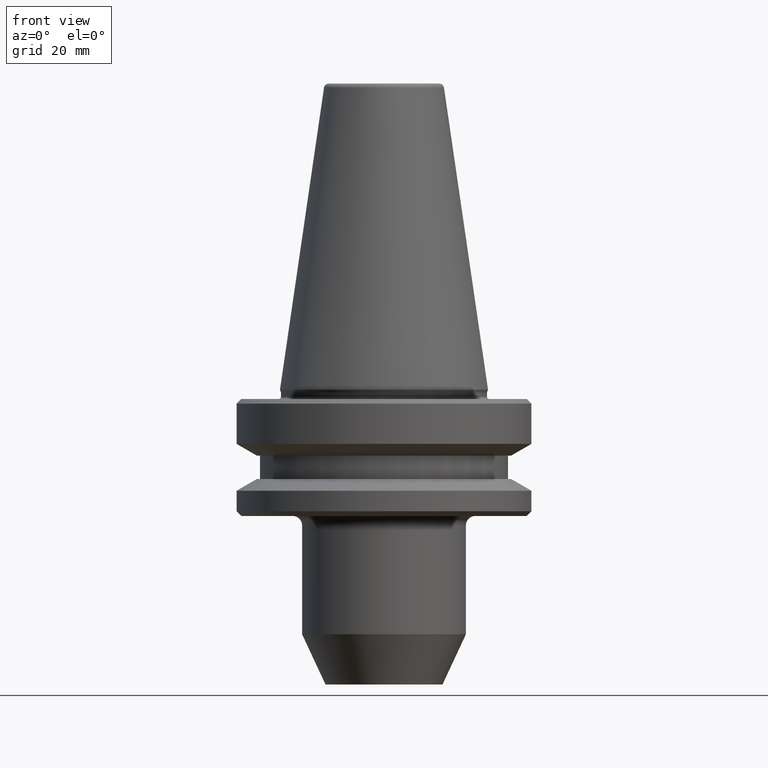
[diagram: clean part render]
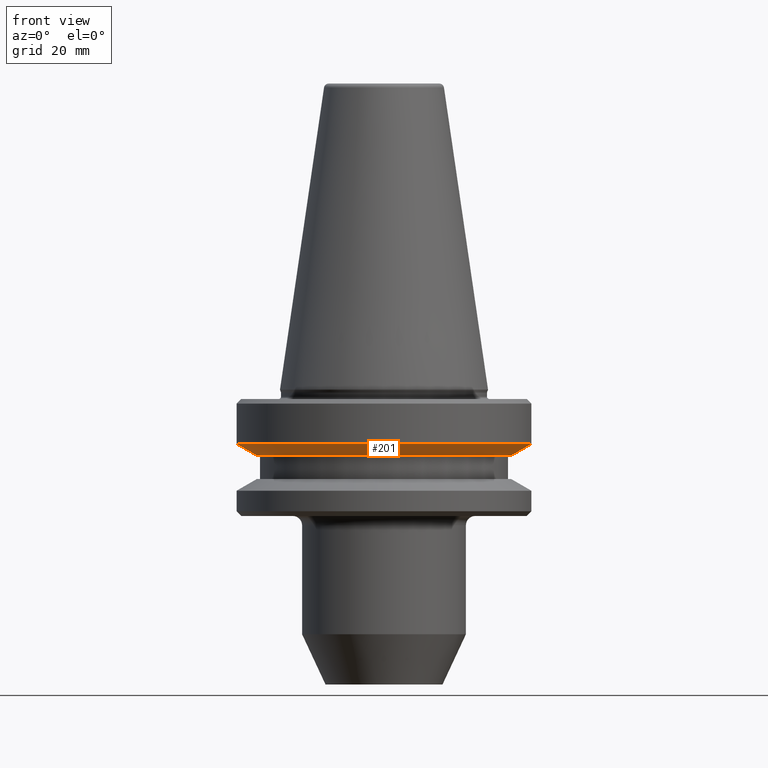
[diagram: same view with one face highlighted and labeled with its STEP entity id]
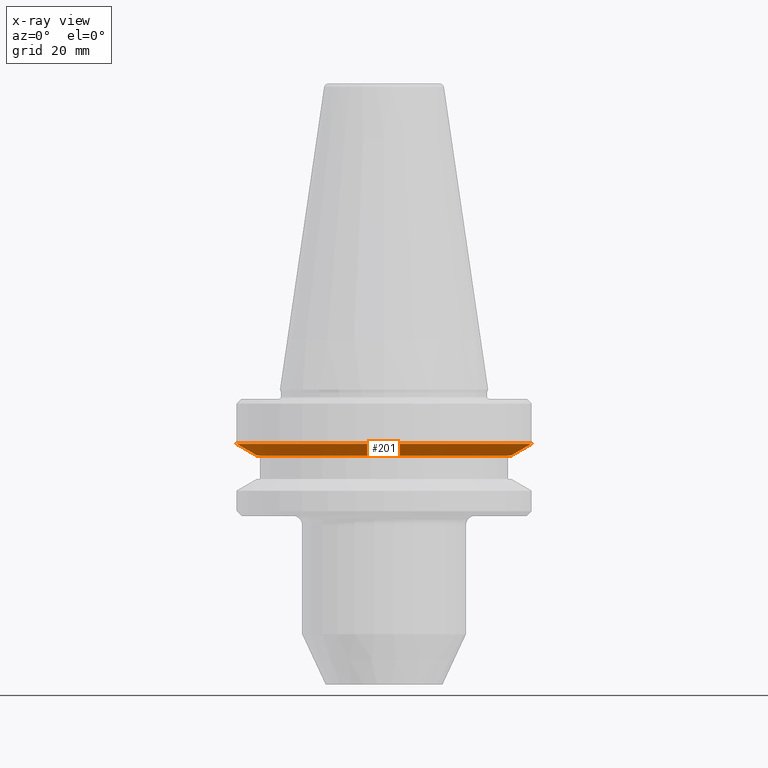
[diagram: x-ray of the same camera — body ghosted, the highlighted face saturated]
A machine part, front view. The second image highlights one B-rep face of the part: STEP entity #201.
The next image is the same camera in x-ray: the body ghosted, the highlighted face saturated — about 0% of this face is hidden behind the body in this view.
In plain terms, the highlighted conical surface has half-angle 60 deg.
Its self-contained STEP definition (entity closure, byte-faithful):
#25 = LINE ( 'NONE', #699, #771 ) ;
#37 = CIRCLE ( 'NONE', #142, 31.49999999999997200 ) ;
#142 = AXIS2_PLACEMENT_3D ( 'NONE', #397, #964, #892 ) ;
#164 = ORIENTED_EDGE ( 'NONE', *, *, #246, .T. ) ;
#201 = ADVANCED_FACE ( 'NONE', ( #990 ), #217, .T. ) ;
#217 = CONICAL_SURFACE ( 'NONE', #538, 27.16962701892289200, 1.047197551196600300 ) ;
#246 = EDGE_CURVE ( 'NONE', #623, #645, #25, .T. ) ;
#277 = CARTESIAN_POINT ( 'NONE',  ( 0.0000000000000000000, 0.0000000000000000000, -14.09999999999966700 ) ) ;
#283 = DIRECTION ( 'NONE',  ( 1.000000000000000000, 0.0000000000000000000, 0.0000000000000000000 ) ) ;
#357 = CARTESIAN_POINT ( 'NONE',  ( -27.16962701892289200, 3.592478546794647300E-015, -14.09999999999966700 ) ) ;
#367 = VERTEX_POINT ( 'NONE', #357 ) ;
#397 = CARTESIAN_POINT ( 'NONE',  ( 0.0000000000000000000, 0.0000000000000000000, -11.59985799368334900 ) ) ;
#469 = VERTEX_POINT ( 'NONE', #709 ) ;
#478 = EDGE_CURVE ( 'NONE', #367, #623, #867, .T. ) ;
#522 = DIRECTION ( 'NONE',  ( -0.0000000000000000000, -0.0000000000000000000, 1.000000000000000000 ) ) ;
#538 = AXIS2_PLACEMENT_3D ( 'NONE', #277, #718, #911 ) ;
#589 = DIRECTION ( 'NONE',  ( 0.8660254037844398200, 0.0000000000000000000, 0.4999999999999977200 ) ) ;
#596 = EDGE_LOOP ( 'NONE', ( #681, #1050, #164, #1037 ) ) ;
#616 = CARTESIAN_POINT ( 'NONE',  ( 31.49999999999997200, 0.0000000000000000000, -11.59985799368334900 ) ) ;
#623 = VERTEX_POINT ( 'NONE', #1049 ) ;
#645 = VERTEX_POINT ( 'NONE', #616 ) ;
#655 = VECTOR ( 'NONE', #877, 1000.000000000000100 ) ;
#674 = EDGE_CURVE ( 'NONE', #367, #469, #875, .T. ) ;
#681 = ORIENTED_EDGE ( 'NONE', *, *, #674, .F. ) ;
#699 = CARTESIAN_POINT ( 'NONE',  ( 27.16962701892289200, 0.0000000000000000000, -14.09999999999966700 ) ) ;
#709 = CARTESIAN_POINT ( 'NONE',  ( -31.49999999999997200, 3.857637417314159500E-015, -11.59985799368334900 ) ) ;
#718 = DIRECTION ( 'NONE',  ( -0.0000000000000000000, -0.0000000000000000000, 1.000000000000000000 ) ) ;
#771 = VECTOR ( 'NONE', #589, 1000.000000000000100 ) ;
#778 = AXIS2_PLACEMENT_3D ( 'NONE', #816, #522, #283 ) ;
#816 = CARTESIAN_POINT ( 'NONE',  ( 0.0000000000000000000, 0.0000000000000000000, -14.09999999999966700 ) ) ;
#867 = CIRCLE ( 'NONE', #778, 27.16962701892289200 ) ;
#875 = LINE ( 'NONE', #894, #655 ) ;
#877 = DIRECTION ( 'NONE',  ( -0.8660254037844398200, 1.060575238724908400E-016, 0.4999999999999977200 ) ) ;
#892 = DIRECTION ( 'NONE',  ( 1.000000000000000000, 0.0000000000000000000, 0.0000000000000000000 ) ) ;
#894 = CARTESIAN_POINT ( 'NONE',  ( -27.16962701892289200, 3.327319676275136300E-015, -14.09999999999966700 ) ) ;
#911 = DIRECTION ( 'NONE',  ( 1.000000000000000000, 0.0000000000000000000, 0.0000000000000000000 ) ) ;
#921 = EDGE_CURVE ( 'NONE', #469, #645, #37, .T. ) ;
#964 = DIRECTION ( 'NONE',  ( -0.0000000000000000000, -0.0000000000000000000, 1.000000000000000000 ) ) ;
#990 = FACE_OUTER_BOUND ( 'NONE', #596, .T. ) ;
#1037 = ORIENTED_EDGE ( 'NONE', *, *, #921, .F. ) ;
#1049 = CARTESIAN_POINT ( 'NONE',  ( 27.16962701892289200, 0.0000000000000000000, -14.09999999999966700 ) ) ;
#1050 = ORIENTED_EDGE ( 'NONE', *, *, #478, .T. ) ;